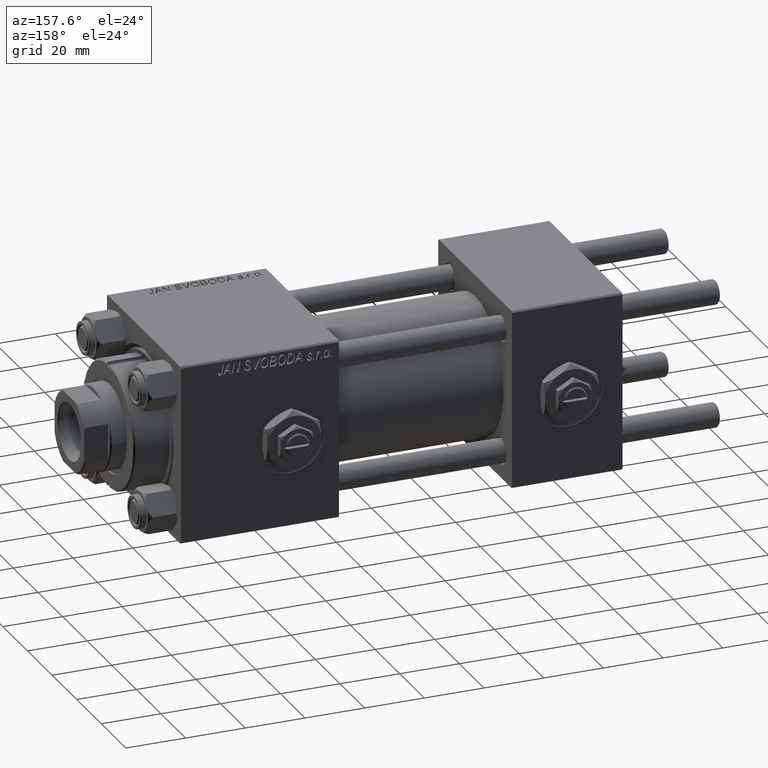
[diagram: clean part render]
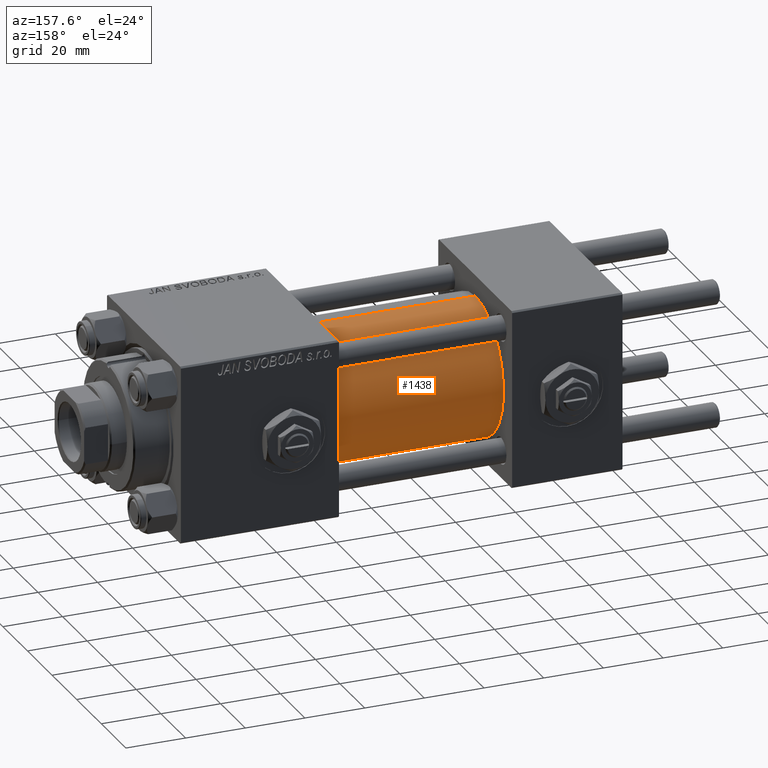
[diagram: same view with one face highlighted and labeled with its STEP entity id]
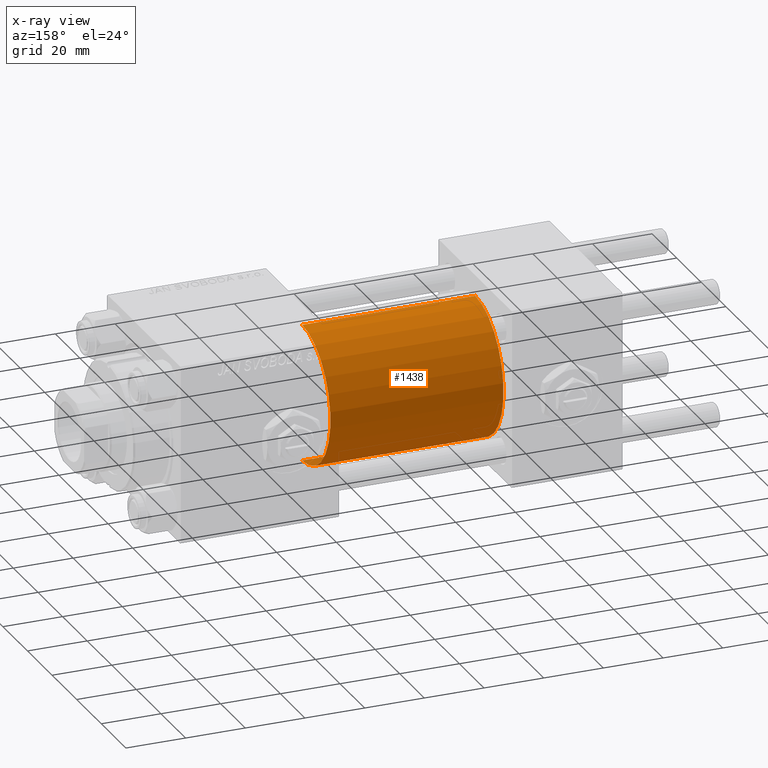
[diagram: x-ray of the same camera — body ghosted, the highlighted face saturated]
A machine part, auxiliary view. The second image highlights one B-rep face of the part: STEP entity #1438.
The next image is the same camera in x-ray: the body ghosted, the highlighted face saturated — about 0% of this face is hidden behind the body in this view.
In plain terms, the highlighted cylindrical surface (partial cylindrical patch) has radius 23 mm, axis along (-1, -0, -0).
Its self-contained STEP definition (entity closure, byte-faithful):
#661 = LINE ( 'NONE', #43930, #29968 ) ;
#1230 = CARTESIAN_POINT ( 'NONE',  ( 37.00000000000000000, 0.000000000000000000, 0.000000000000000000 ) ) ;
#1438 = ADVANCED_FACE ( 'NONE', ( #49727 ), #1722, .T. ) ;
#1722 = CYLINDRICAL_SURFACE ( 'NONE', #16608, 23.00000000000000000 ) ;
#5139 = EDGE_LOOP ( 'NONE', ( #35969, #23660, #18736, #34005 ) ) ;
#5228 = EDGE_CURVE ( 'NONE', #52169, #41400, #15066, .T. ) ;
#6045 = DIRECTION ( 'NONE',  ( 0.000000000000000000, 0.000000000000000000, -1.000000000000000000 ) ) ;
#7796 = DIRECTION ( 'NONE',  ( -1.000000000000000000, -0.000000000000000000, -0.000000000000000000 ) ) ;
#8060 = VECTOR ( 'NONE', #38659, 1000.000000000000000 ) ;
#8324 = AXIS2_PLACEMENT_3D ( 'NONE', #50865, #26082, #6045 ) ;
#9378 = DIRECTION ( 'NONE',  ( -1.000000000000000000, -0.000000000000000000, -0.000000000000000000 ) ) ;
#13109 = DIRECTION ( 'NONE',  ( 0.000000000000000000, 0.000000000000000000, 1.000000000000000000 ) ) ;
#15066 = CIRCLE ( 'NONE', #8324, 23.00000000000000000 ) ;
#16608 = AXIS2_PLACEMENT_3D ( 'NONE', #17543, #9378, #20987 ) ;
#17543 = CARTESIAN_POINT ( 'NONE',  ( 95.00000000000000000, 0.000000000000000000, 0.000000000000000000 ) ) ;
#18267 = CIRCLE ( 'NONE', #51956, 23.00000000000000000 ) ;
#18736 = ORIENTED_EDGE ( 'NONE', *, *, #21364, .T. ) ;
#19001 = EDGE_CURVE ( 'NONE', #41400, #43884, #661, .T. ) ;
#20987 = DIRECTION ( 'NONE',  ( 0.000000000000000000, 0.000000000000000000, 1.000000000000000000 ) ) ;
#21364 = EDGE_CURVE ( 'NONE', #29849, #43884, #18267, .T. ) ;
#22572 = LINE ( 'NONE', #30233, #8060 ) ;
#23660 = ORIENTED_EDGE ( 'NONE', *, *, #51271, .T. ) ;
#26082 = DIRECTION ( 'NONE',  ( 1.000000000000000000, 0.000000000000000000, 0.000000000000000000 ) ) ;
#29849 = VERTEX_POINT ( 'NONE', #36539 ) ;
#29968 = VECTOR ( 'NONE', #7796, 1000.000000000000000 ) ;
#30233 = CARTESIAN_POINT ( 'NONE',  ( 95.00000000000000000, 2.816687638038911957E-15, -23.00000000000000000 ) ) ;
#33137 = DIRECTION ( 'NONE',  ( 1.000000000000000000, -0.000000000000000000, 0.000000000000000000 ) ) ;
#34005 = ORIENTED_EDGE ( 'NONE', *, *, #19001, .F. ) ;
#35969 = ORIENTED_EDGE ( 'NONE', *, *, #5228, .F. ) ;
#36539 = CARTESIAN_POINT ( 'NONE',  ( 37.00000000000000000, 2.816687638038911957E-15, -23.00000000000000000 ) ) ;
#37058 = CARTESIAN_POINT ( 'NONE',  ( 95.00000000000000000, 2.816687638038911957E-15, -23.00000000000000000 ) ) ;
#38659 = DIRECTION ( 'NONE',  ( -1.000000000000000000, -0.000000000000000000, -0.000000000000000000 ) ) ;
#41400 = VERTEX_POINT ( 'NONE', #51295 ) ;
#43688 = CARTESIAN_POINT ( 'NONE',  ( 37.00000000000000000, 0.000000000000000000, 23.00000000000000000 ) ) ;
#43884 = VERTEX_POINT ( 'NONE', #43688 ) ;
#43930 = CARTESIAN_POINT ( 'NONE',  ( 95.00000000000000000, 0.000000000000000000, 23.00000000000000000 ) ) ;
#49727 = FACE_OUTER_BOUND ( 'NONE', #5139, .T. ) ;
#50865 = CARTESIAN_POINT ( 'NONE',  ( 95.00000000000000000, 0.000000000000000000, 0.000000000000000000 ) ) ;
#51271 = EDGE_CURVE ( 'NONE', #52169, #29849, #22572, .T. ) ;
#51295 = CARTESIAN_POINT ( 'NONE',  ( 95.00000000000000000, 0.000000000000000000, 23.00000000000000000 ) ) ;
#51956 = AXIS2_PLACEMENT_3D ( 'NONE', #1230, #33137, #13109 ) ;
#52169 = VERTEX_POINT ( 'NONE', #37058 ) ;